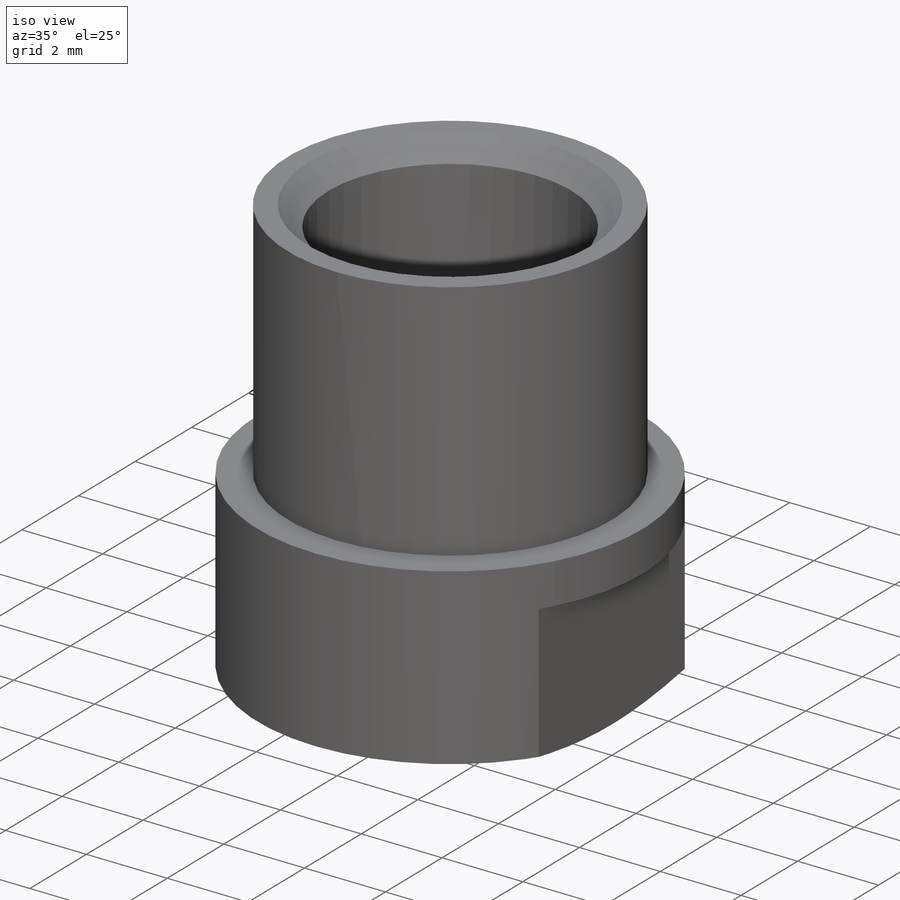
[diagram: iso view]
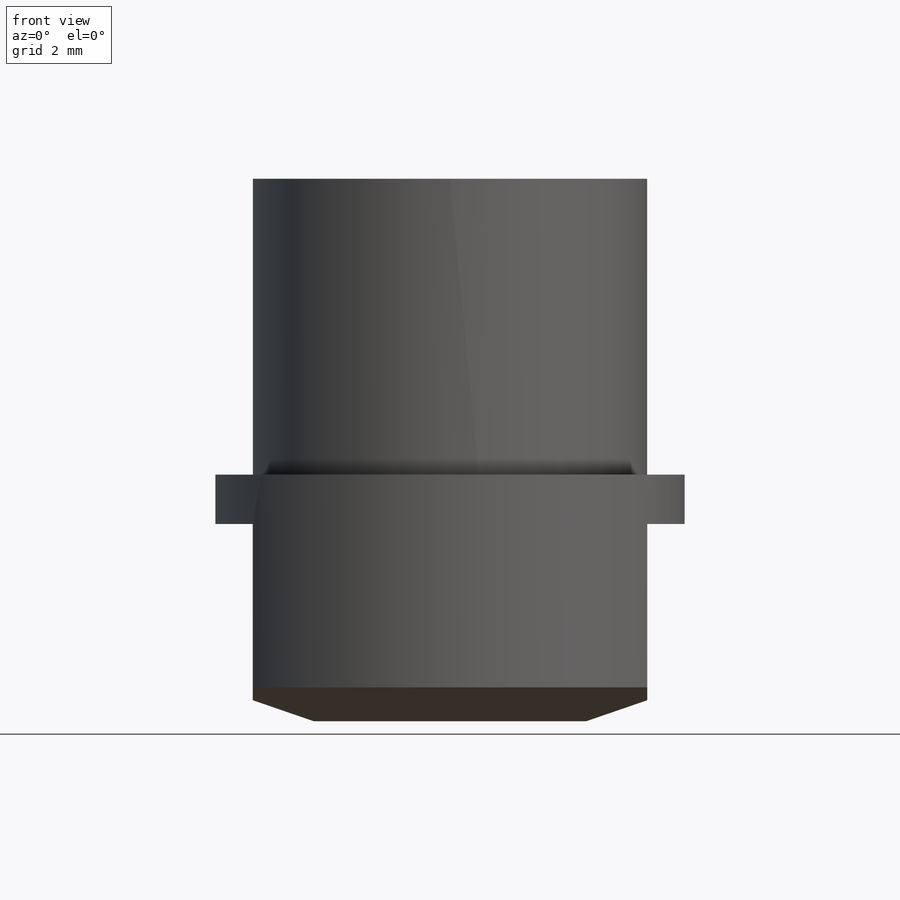
[diagram: front view]
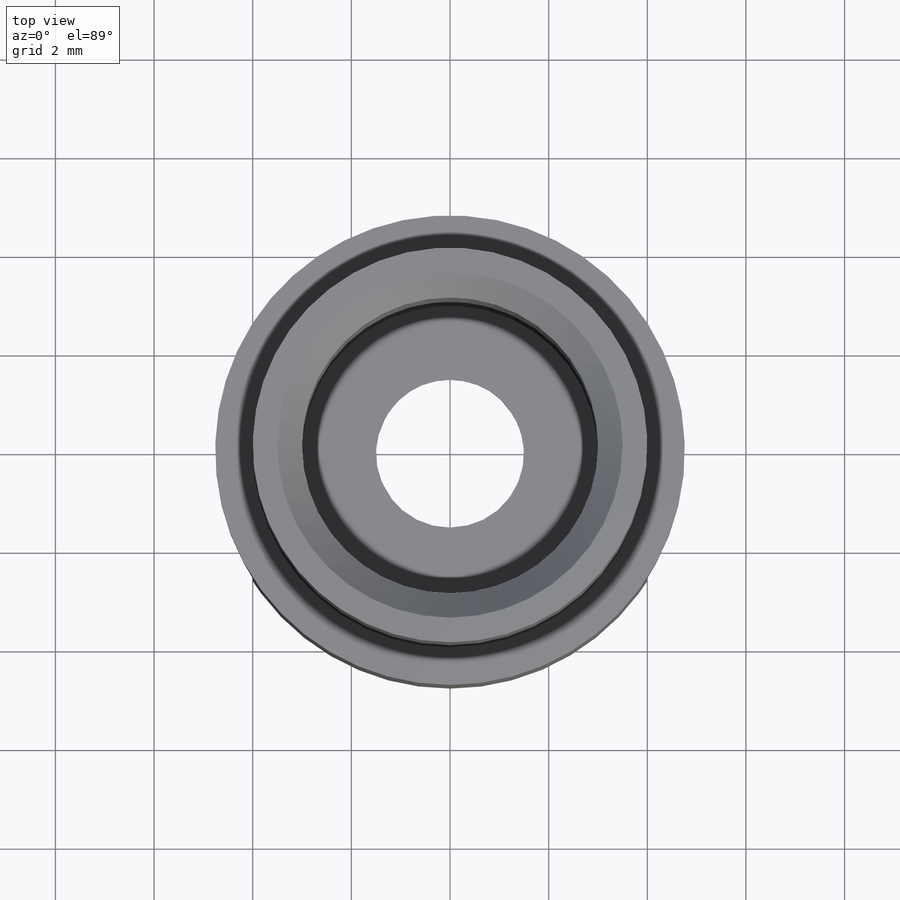
[diagram: top view]
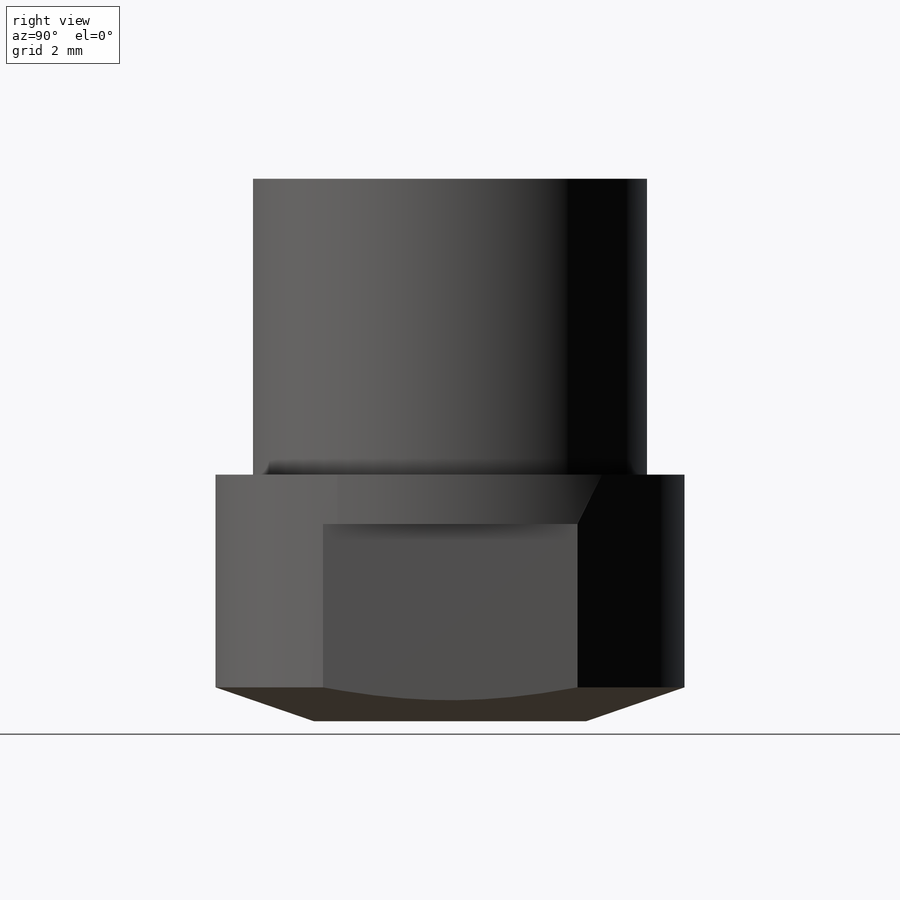
[diagram: right view]
SOLIDWORKS PART (.sldprt)
format: sldprt  version: not decoded by parser v0  size: 189,440 bytes
history: native  units: mm
features: plane x3, sketch x2, chamfer x2, material x1, revolve x1, cut_extrude x1 (+10 scaffold rows collapsed)
feature tree (20):
  scaffold x10  (default folders/planes/origin — collapsed)
  material  "Material <sin especificar>"
  plane  "Alzado"
  plane  "Planta"
  plane  "Vista lateral"
  sketch  "Croquis1"  dims[D1=5.0mm D2=6.0mm D3=1.0mm D4=4.76mm 3=3.0mm D6=1.5mm D5=4.0mm D7=0.8mm D8=45.0deg]
  revolve  "Revolución2"  Angle=360deg
  chamfer  "Chaflán1"  Distance=2mm Angle=19deg
  chamfer  "Chaflán2"  Distance=0.5mm Angle=45deg
  sketch  "Croquis2"  dims[D1=8.0mm D2=12.0mm]
  cut_extrude  "Cortar-Extruir1"  Depth=4mm
decode coverage: 6 of 6 modeling features carry decoded parameters
note: suppression state not decoded; provenance and decode notes live in map.json
